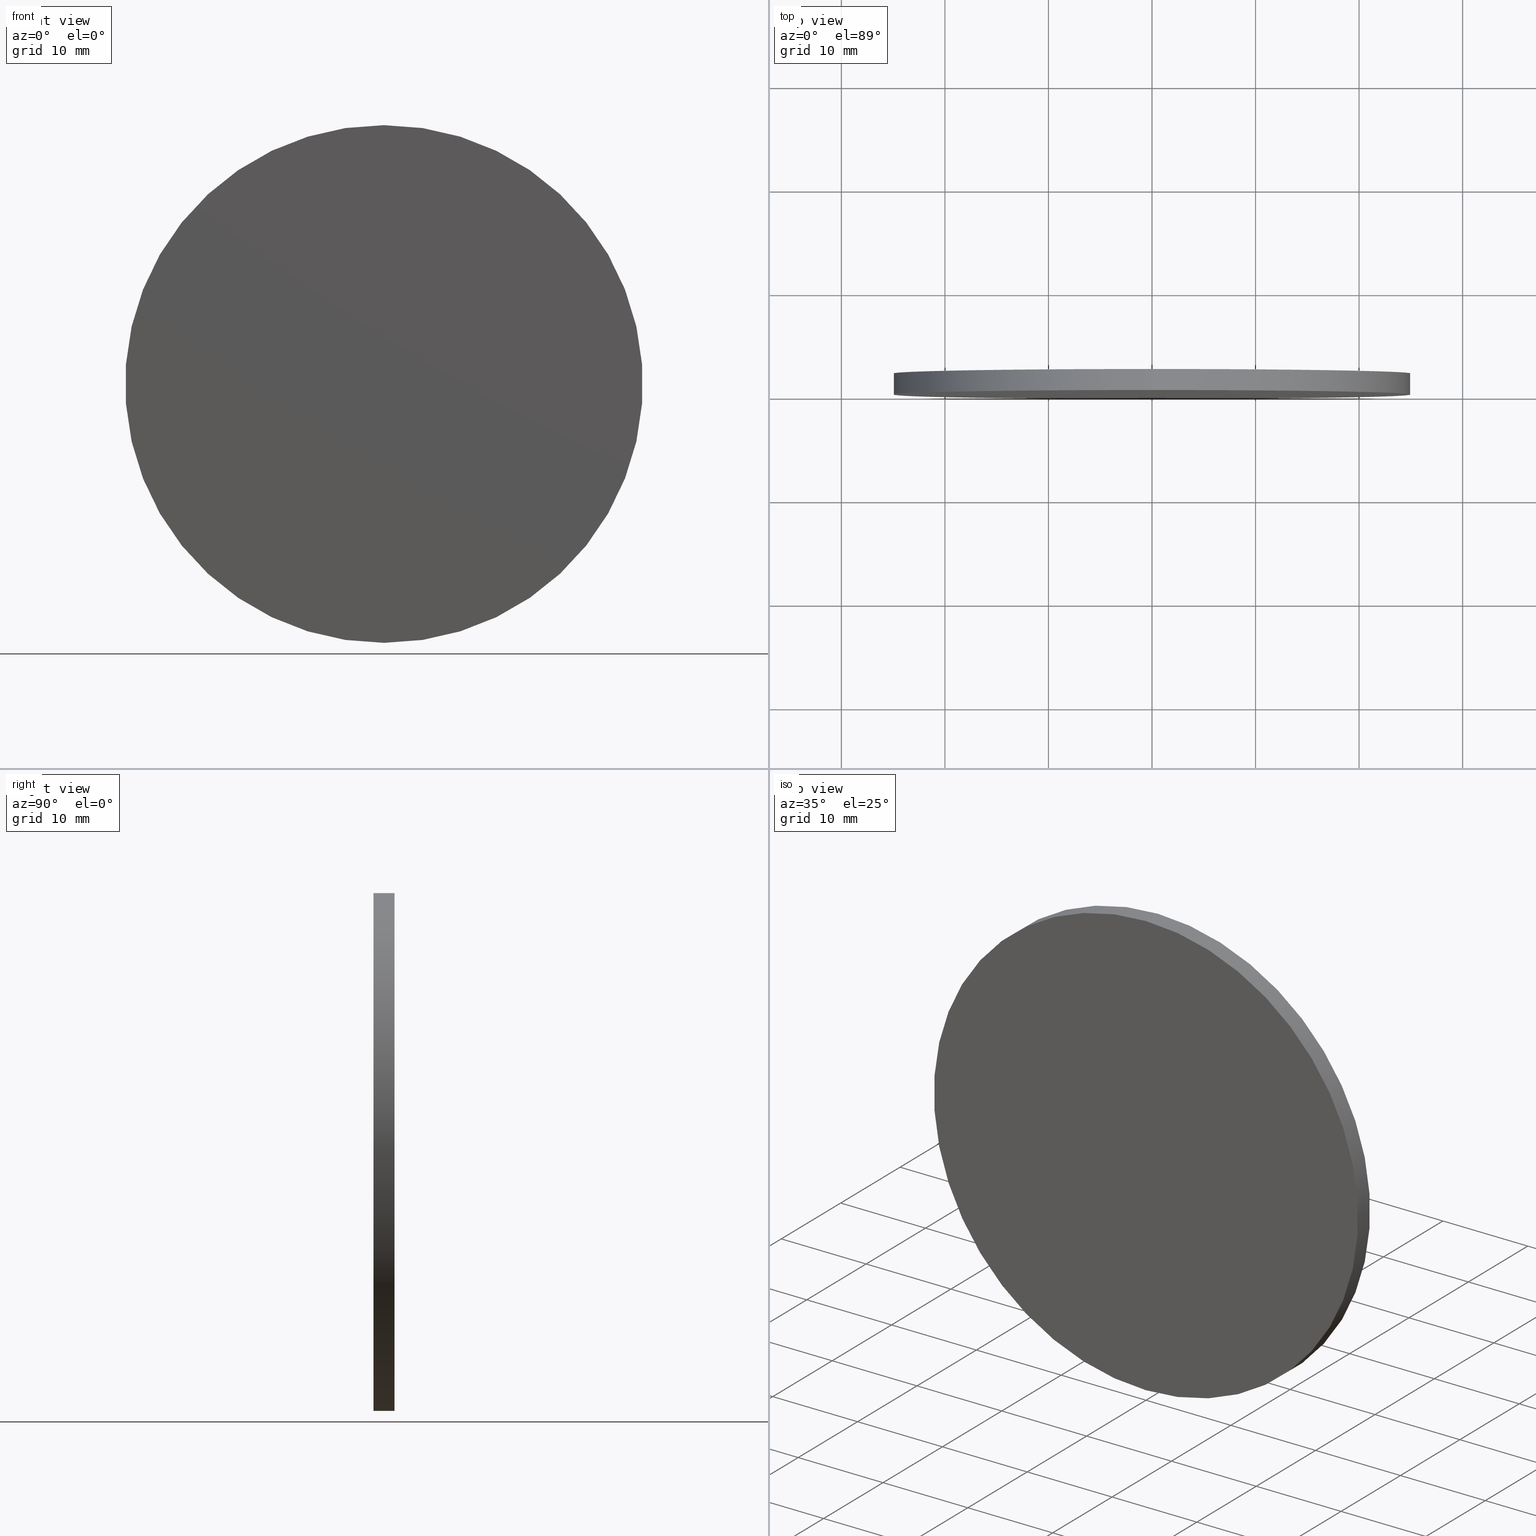
[diagram: canonical four-view strip — front | top / right | iso, engineering-drawing reading convention]
A machine part, canonical four-view strip (front | top / right | iso — engineering-drawing reading convention). The complete STEP part file that produces these views, byte-faithful:
ISO-10303-21;
HEADER;
FILE_DESCRIPTION (( 'STEP AP214' ),
    '1' );
FILE_NAME ('248603.STEP',
    '2019-08-06T05:35:00',
    ( 'user' ),
    ( '΢���й�' ),
    'SwSTEP 2.0',
    'SolidWorks 2016',
    '' );
FILE_SCHEMA (( 'AUTOMOTIVE_DESIGN' ));
ENDSEC;

DATA;
#1 = VERTEX_POINT ( 'NONE', #31 ) ;
#2 = FACE_OUTER_BOUND ( 'NONE', #19, .T. ) ;
#3 = ADVANCED_FACE ( 'NONE', ( #84 ), #40, .T. ) ;
#4 = DIRECTION ( 'NONE',  ( 0.0000000000000000000, -0.0000000000000000000, 1.000000000000000000 ) ) ;
#5 = FACE_OUTER_BOUND ( 'NONE', #59, .T. ) ;
#6 = PRESENTATION_LAYER_ASSIGNMENT (  '', '', ( #122 ) ) ;
#7 = CARTESIAN_POINT ( 'NONE',  ( 0.0000000000000000000, 2.029999999999999800, -25.00000000000000000 ) ) ;
#8 = ORIENTED_EDGE ( 'NONE', *, *, #100, .T. ) ;
#9 = AXIS2_PLACEMENT_3D ( 'NONE', #101, #28, #80 ) ;
#10 = MANIFOLD_SOLID_BREP ( '͹̨-����1', #66 ) ;
#11 = STYLED_ITEM ( 'NONE', ( #98 ), #123 ) ;
#12 = AXIS2_PLACEMENT_3D ( 'NONE', #82, #13, #14 ) ;
#13 = DIRECTION ( 'NONE',  ( 0.0000000000000000000, 1.000000000000000000, 0.0000000000000000000 ) ) ;
#14 = DIRECTION ( 'NONE',  ( 0.0000000000000000000, 0.0000000000000000000, 1.000000000000000000 ) ) ;
#15 = VERTEX_POINT ( 'NONE', #124 ) ;
#16 = FILL_AREA_STYLE ('',( #135 ) ) ;
#17 = CARTESIAN_POINT ( 'NONE',  ( 0.0000000000000000000, 2.029999999999999800, 0.0000000000000000000 ) ) ;
#18 = ADVANCED_FACE ( 'NONE', ( #2 ), #76, .T. ) ;
#19 = EDGE_LOOP ( 'NONE', ( #112, #48, #117, #93 ) ) ;
#20 = LINE ( 'NONE', #7, #26 ) ;
#21 = PRESENTATION_LAYER_ASSIGNMENT (  '', '', ( #11 ) ) ;
#22 = AXIS2_PLACEMENT_3D ( 'NONE', #120, #46, #24 ) ;
#23 = ORIENTED_EDGE ( 'NONE', *, *, #75, .T. ) ;
#24 = DIRECTION ( 'NONE',  ( 0.0000000000000000000, -0.0000000000000000000, 1.000000000000000000 ) ) ;
#25 = DIRECTION ( 'NONE',  ( -0.0000000000000000000, -1.000000000000000000, -0.0000000000000000000 ) ) ;
#26 = VECTOR ( 'NONE', #111, 1000.000000000000000 ) ;
#27 = ORIENTED_EDGE ( 'NONE', *, *, #62, .F. ) ;
#28 = DIRECTION ( 'NONE',  ( 0.0000000000000000000, 1.000000000000000000, 0.0000000000000000000 ) ) ;
#29 = SHAPE_DEFINITION_REPRESENTATION ( #113, #123 ) ;
#30 = DIRECTION ( 'NONE',  ( -0.0000000000000000000, -1.000000000000000000, -0.0000000000000000000 ) ) ;
#31 = CARTESIAN_POINT ( 'NONE',  ( 0.0000000000000000000, 2.029999999999999800, -25.00000000000000000 ) ) ;
#32 = EDGE_LOOP ( 'NONE', ( #89, #43, #23, #57 ) ) ;
#33 = LINE ( 'NONE', #88, #83 ) ;
#34 = ADVANCED_FACE ( 'NONE', ( #5 ), #92, .T. ) ;
#35 = VERTEX_POINT ( 'NONE', #126 ) ;
#36 = DIRECTION ( 'NONE',  ( 0.0000000000000000000, 0.0000000000000000000, -1.000000000000000000 ) ) ;
#37 = AXIS2_PLACEMENT_3D ( 'NONE', #74, #136, #4 ) ;
#38 = SURFACE_STYLE_FILL_AREA ( #16 ) ;
#39 = PLANE ( 'NONE',  #37 ) ;
#40 = CYLINDRICAL_SURFACE ( 'NONE', #85, 25.00000000000000000 ) ;
#41 = APPLICATION_CONTEXT ( 'automotive_design' ) ;
#42 = DIRECTION ( 'NONE',  ( 0.0000000000000000000, 0.0000000000000000000, -1.000000000000000000 ) ) ;
#43 = ORIENTED_EDGE ( 'NONE', *, *, #106, .T. ) ;
#44 = ADVANCED_FACE ( 'NONE', ( #139 ), #39, .F. ) ;
#45 = COLOUR_RGB ( '',1.000000000000000000, 1.000000000000000000, 1.000000000000000000 ) ;
#46 = DIRECTION ( 'NONE',  ( 0.0000000000000000000, 1.000000000000000000, 0.0000000000000000000 ) ) ;
#47 = AXIS2_PLACEMENT_3D ( 'NONE', #64, #54, #53 ) ;
#48 = ORIENTED_EDGE ( 'NONE', *, *, #78, .F. ) ;
#49 = EDGE_LOOP ( 'NONE', ( #27, #104 ) ) ;
#50 = CARTESIAN_POINT ( 'NONE',  ( 3.061616997868383000E-015, 2.029999999999999800, 25.00000000000000000 ) ) ;
#51 = SURFACE_STYLE_USAGE ( .BOTH. , #86 ) ;
#52 =( GEOMETRIC_REPRESENTATION_CONTEXT ( 3 ) GLOBAL_UNCERTAINTY_ASSIGNED_CONTEXT ( ( #60 ) ) GLOBAL_UNIT_ASSIGNED_CONTEXT ( ( #137, #68, #91 ) ) REPRESENTATION_CONTEXT ( 'NONE', 'WORKASPACE' ) );
#53 = DIRECTION ( 'NONE',  ( 0.0000000000000000000, 0.0000000000000000000, 1.000000000000000000 ) ) ;
#54 = DIRECTION ( 'NONE',  ( 0.0000000000000000000, 1.000000000000000000, 0.0000000000000000000 ) ) ;
#55 = CIRCLE ( 'NONE', #130, 25.00000000000000000 ) ;
#56 = PRODUCT_RELATED_PRODUCT_CATEGORY ( 'part', '', ( #110 ) ) ;
#57 = ORIENTED_EDGE ( 'NONE', *, *, #65, .F. ) ;
#58 =( GEOMETRIC_REPRESENTATION_CONTEXT ( 3 ) GLOBAL_UNCERTAINTY_ASSIGNED_CONTEXT ( ( #97 ) ) GLOBAL_UNIT_ASSIGNED_CONTEXT ( ( #90, #71, #69 ) ) REPRESENTATION_CONTEXT ( 'NONE', 'WORKASPACE' ) );
#59 = EDGE_LOOP ( 'NONE', ( #133, #8 ) ) ;
#60 = UNCERTAINTY_MEASURE_WITH_UNIT (LENGTH_MEASURE( 1.000000000000000100E-005 ), #137, 'distance_accuracy_value', 'NONE');
#61 = FILL_AREA_STYLE ('',( #94 ) ) ;
#62 = EDGE_CURVE ( 'NONE', #35, #15, #134, .T. ) ;
#63 = PRODUCT_CONTEXT ( 'NONE', #79, 'mechanical' ) ;
#64 = CARTESIAN_POINT ( 'NONE',  ( 0.0000000000000000000, 2.029999999999999800, 0.0000000000000000000 ) ) ;
#65 = EDGE_CURVE ( 'NONE', #1, #35, #20, .T. ) ;
#66 = CLOSED_SHELL ( 'NONE', ( #3, #18, #34, #44 ) ) ;
#67 = PRESENTATION_STYLE_ASSIGNMENT (( #51 ) ) ;
#68 =( NAMED_UNIT ( * ) PLANE_ANGLE_UNIT ( ) SI_UNIT ( $, .RADIAN. ) );
#69 =( NAMED_UNIT ( * ) SI_UNIT ( $, .STERADIAN. ) SOLID_ANGLE_UNIT ( ) );
#70 = MECHANICAL_DESIGN_GEOMETRIC_PRESENTATION_REPRESENTATION (  '', ( #122 ), #116 ) ;
#71 =( NAMED_UNIT ( * ) PLANE_ANGLE_UNIT ( ) SI_UNIT ( $, .RADIAN. ) );
#72 = DIRECTION ( 'NONE',  ( -0.0000000000000000000, -1.000000000000000000, -0.0000000000000000000 ) ) ;
#73 = SURFACE_SIDE_STYLE ('',( #38 ) ) ;
#74 = CARTESIAN_POINT ( 'NONE',  ( 0.0000000000000000000, 0.0000000000000000000, 0.0000000000000000000 ) ) ;
#75 = EDGE_CURVE ( 'NONE', #15, #35, #55, .T. ) ;
#76 = CYLINDRICAL_SURFACE ( 'NONE', #125, 25.00000000000000000 ) ;
#77 = APPLICATION_PROTOCOL_DEFINITION ( 'draft international standard', 'automotive_design', 1998, #41 ) ;
#78 = EDGE_CURVE ( 'NONE', #1, #108, #118, .T. ) ;
#79 = APPLICATION_CONTEXT ( 'automotive_design' ) ;
#80 = DIRECTION ( 'NONE',  ( 0.0000000000000000000, 0.0000000000000000000, 1.000000000000000000 ) ) ;
#81 = SURFACE_STYLE_FILL_AREA ( #61 ) ;
#82 = CARTESIAN_POINT ( 'NONE',  ( 0.0000000000000000000, 0.0000000000000000000, 0.0000000000000000000 ) ) ;
#83 = VECTOR ( 'NONE', #30, 1000.000000000000000 ) ;
#84 = FACE_OUTER_BOUND ( 'NONE', #32, .T. ) ;
#85 = AXIS2_PLACEMENT_3D ( 'NONE', #17, #25, #42 ) ;
#86 = SURFACE_SIDE_STYLE ('',( #81 ) ) ;
#87 = APPLICATION_PROTOCOL_DEFINITION ( 'draft international standard', 'automotive_design', 1998, #79 ) ;
#88 = CARTESIAN_POINT ( 'NONE',  ( 3.061616997868383000E-015, 2.029999999999999800, 25.00000000000000000 ) ) ;
#89 = ORIENTED_EDGE ( 'NONE', *, *, #100, .F. ) ;
#90 =( LENGTH_UNIT ( ) NAMED_UNIT ( * ) SI_UNIT ( .MILLI., .METRE. ) );
#91 =( NAMED_UNIT ( * ) SI_UNIT ( $, .STERADIAN. ) SOLID_ANGLE_UNIT ( ) );
#92 = PLANE ( 'NONE',  #22 ) ;
#93 = ORIENTED_EDGE ( 'NONE', *, *, #62, .T. ) ;
#94 = FILL_AREA_STYLE_COLOUR ( '', #121 ) ;
#95 = CARTESIAN_POINT ( 'NONE',  ( 0.0000000000000000000, 2.029999999999999800, 0.0000000000000000000 ) ) ;
#96 = CARTESIAN_POINT ( 'NONE',  ( 0.0000000000000000000, 0.0000000000000000000, 0.0000000000000000000 ) ) ;
#97 = UNCERTAINTY_MEASURE_WITH_UNIT (LENGTH_MEASURE( 1.000000000000000100E-005 ), #90, 'distance_accuracy_value', 'NONE');
#98 = PRESENTATION_STYLE_ASSIGNMENT (( #119 ) ) ;
#99 = AXIS2_PLACEMENT_3D ( 'NONE', #115, #102, #138 ) ;
#100 = EDGE_CURVE ( 'NONE', #108, #1, #129, .T. ) ;
#101 = CARTESIAN_POINT ( 'NONE',  ( 0.0000000000000000000, 2.029999999999999800, 0.0000000000000000000 ) ) ;
#102 = DIRECTION ( 'NONE',  ( 0.0000000000000000000, 0.0000000000000000000, 1.000000000000000000 ) ) ;
#103 = DIRECTION ( 'NONE',  ( 0.0000000000000000000, 1.000000000000000000, 0.0000000000000000000 ) ) ;
#104 = ORIENTED_EDGE ( 'NONE', *, *, #75, .F. ) ;
#105 = PRODUCT_DEFINITION ( 'δ֪', '', #114, #127 ) ;
#106 = EDGE_CURVE ( 'NONE', #108, #15, #33, .T. ) ;
#107 = MECHANICAL_DESIGN_GEOMETRIC_PRESENTATION_REPRESENTATION (  '', ( #11 ), #58 ) ;
#108 = VERTEX_POINT ( 'NONE', #50 ) ;
#109 = DIRECTION ( 'NONE',  ( 0.0000000000000000000, 0.0000000000000000000, 1.000000000000000000 ) ) ;
#110 = PRODUCT ( '248603', '248603', '', ( #63 ) ) ;
#111 = DIRECTION ( 'NONE',  ( -0.0000000000000000000, -1.000000000000000000, -0.0000000000000000000 ) ) ;
#112 = ORIENTED_EDGE ( 'NONE', *, *, #106, .F. ) ;
#113 = PRODUCT_DEFINITION_SHAPE ( 'NONE', 'NONE',  #105 ) ;
#114 = PRODUCT_DEFINITION_FORMATION_WITH_SPECIFIED_SOURCE ( '�κ�', '', #110, .NOT_KNOWN. ) ;
#115 = CARTESIAN_POINT ( 'NONE',  ( 0.0000000000000000000, 0.0000000000000000000, 0.0000000000000000000 ) ) ;
#116 =( GEOMETRIC_REPRESENTATION_CONTEXT ( 3 ) GLOBAL_UNCERTAINTY_ASSIGNED_CONTEXT ( ( #140 ) ) GLOBAL_UNIT_ASSIGNED_CONTEXT ( ( #131, #132, #128 ) ) REPRESENTATION_CONTEXT ( 'NONE', 'WORKASPACE' ) );
#117 = ORIENTED_EDGE ( 'NONE', *, *, #65, .T. ) ;
#118 = CIRCLE ( 'NONE', #47, 25.00000000000000000 ) ;
#119 = SURFACE_STYLE_USAGE ( .BOTH. , #73 ) ;
#120 = CARTESIAN_POINT ( 'NONE',  ( 0.0000000000000000000, 2.029999999999999800, 0.0000000000000000000 ) ) ;
#121 = COLOUR_RGB ( '',1.000000000000000000, 1.000000000000000000, 1.000000000000000000 ) ;
#122 = STYLED_ITEM ( 'NONE', ( #67 ), #10 ) ;
#123 = ADVANCED_BREP_SHAPE_REPRESENTATION ( '248603', ( #10, #99 ), #52 ) ;
#124 = CARTESIAN_POINT ( 'NONE',  ( 3.061616997868383000E-015, 0.0000000000000000000, 25.00000000000000000 ) ) ;
#125 = AXIS2_PLACEMENT_3D ( 'NONE', #95, #72, #36 ) ;
#126 = CARTESIAN_POINT ( 'NONE',  ( 0.0000000000000000000, 0.0000000000000000000, -25.00000000000000000 ) ) ;
#127 = PRODUCT_DEFINITION_CONTEXT ( 'detailed design', #41, 'design' ) ;
#128 =( NAMED_UNIT ( * ) SI_UNIT ( $, .STERADIAN. ) SOLID_ANGLE_UNIT ( ) );
#129 = CIRCLE ( 'NONE', #9, 25.00000000000000000 ) ;
#130 = AXIS2_PLACEMENT_3D ( 'NONE', #96, #103, #109 ) ;
#131 =( LENGTH_UNIT ( ) NAMED_UNIT ( * ) SI_UNIT ( .MILLI., .METRE. ) );
#132 =( NAMED_UNIT ( * ) PLANE_ANGLE_UNIT ( ) SI_UNIT ( $, .RADIAN. ) );
#133 = ORIENTED_EDGE ( 'NONE', *, *, #78, .T. ) ;
#134 = CIRCLE ( 'NONE', #12, 25.00000000000000000 ) ;
#135 = FILL_AREA_STYLE_COLOUR ( '', #45 ) ;
#136 = DIRECTION ( 'NONE',  ( 0.0000000000000000000, 1.000000000000000000, 0.0000000000000000000 ) ) ;
#137 =( LENGTH_UNIT ( ) NAMED_UNIT ( * ) SI_UNIT ( .MILLI., .METRE. ) );
#138 = DIRECTION ( 'NONE',  ( 1.000000000000000000, 0.0000000000000000000, 0.0000000000000000000 ) ) ;
#139 = FACE_OUTER_BOUND ( 'NONE', #49, .T. ) ;
#140 = UNCERTAINTY_MEASURE_WITH_UNIT (LENGTH_MEASURE( 1.000000000000000100E-005 ), #131, 'distance_accuracy_value', 'NONE');
ENDSEC;
END-ISO-10303-21;
